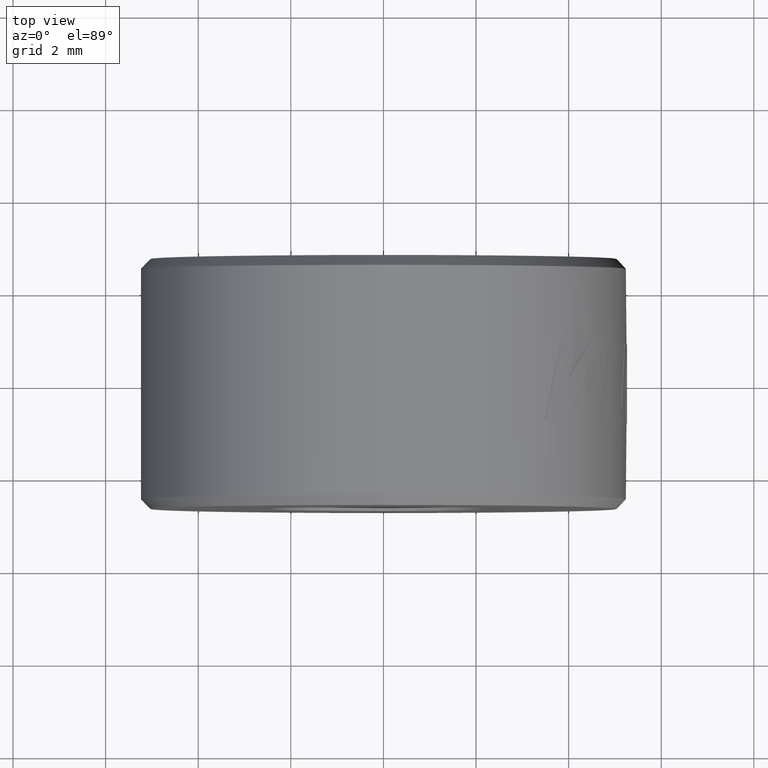
[diagram: clean part render]
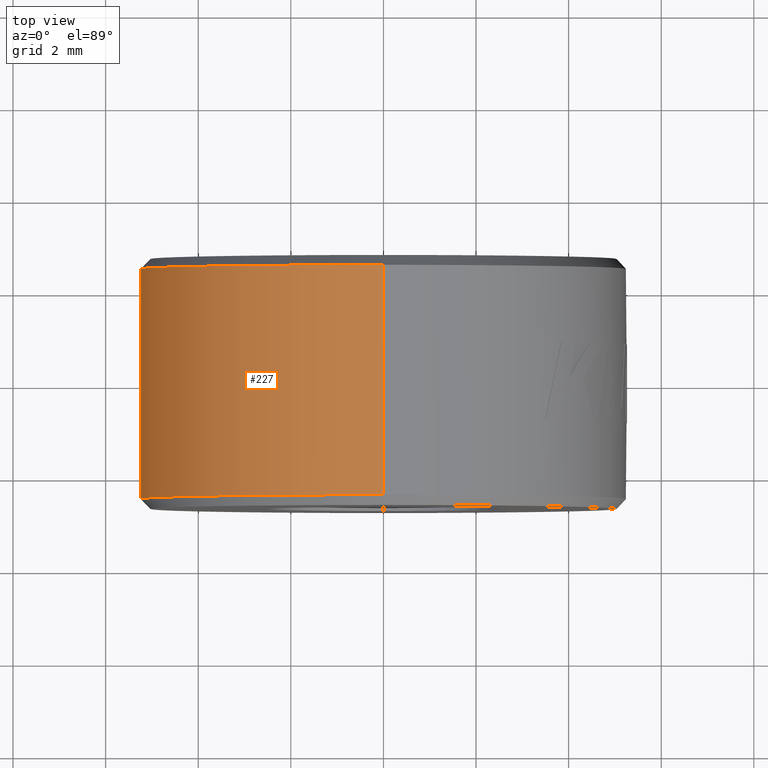
[diagram: same view with one face highlighted and labeled with its STEP entity id]
A machine part, top view. The second image highlights one B-rep face of the part: STEP entity #227.
In plain terms, the highlighted cylindrical surface (partial cylindrical patch) has radius 5.25 mm, axis along (0, 1, 0).
Its self-contained STEP definition (entity closure, byte-faithful):
#40 = AXIS2_PLACEMENT_3D ( 'NONE', #162, #691, #2051 ) ;
#53 = DIRECTION ( 'NONE',  ( 0.000000000000000000, 0.000000000000000000, 1.000000000000000000 ) ) ;
#162 = CARTESIAN_POINT ( 'NONE',  ( 0.000000000000000000, -2.700000000000000178, 0.000000000000000000 ) ) ;
#188 = CARTESIAN_POINT ( 'NONE',  ( 0.000000000000000000, -2.483699999999993135, 0.000000000000000000 ) ) ;
#205 = CARTESIAN_POINT ( 'NONE',  ( 0.000000000000000000, 2.483700000000002017, 0.000000000000000000 ) ) ;
#227 = ADVANCED_FACE ( 'NONE', ( #715 ), #2409, .T. ) ;
#270 = DIRECTION ( 'NONE',  ( 0.000000000000000000, 1.000000000000000000, 0.000000000000000000 ) ) ;
#318 = EDGE_CURVE ( 'NONE', #1712, #1599, #357, .T. ) ;
#336 = DIRECTION ( 'NONE',  ( 0.000000000000000000, 1.000000000000000000, 0.000000000000000000 ) ) ;
#357 = CIRCLE ( 'NONE', #1675, 5.250000000000000000 ) ;
#383 = EDGE_LOOP ( 'NONE', ( #2380, #2088, #1356, #1074 ) ) ;
#406 = VERTEX_POINT ( 'NONE', #465 ) ;
#419 = EDGE_CURVE ( 'NONE', #406, #1712, #511, .T. ) ;
#465 = CARTESIAN_POINT ( 'NONE',  ( 0.000000000000000000, -2.483699999999993135, 5.250000000000000000 ) ) ;
#504 = CARTESIAN_POINT ( 'NONE',  ( 6.429395695523603167E-16, -2.700000000000000178, -5.250000000000000000 ) ) ;
#511 = LINE ( 'NONE', #2174, #2382 ) ;
#590 = VERTEX_POINT ( 'NONE', #2034 ) ;
#691 = DIRECTION ( 'NONE',  ( 0.000000000000000000, 1.000000000000000000, 0.000000000000000000 ) ) ;
#715 = FACE_OUTER_BOUND ( 'NONE', #383, .T. ) ;
#823 = CARTESIAN_POINT ( 'NONE',  ( 6.429395695523603167E-16, 2.483700000000002017, -5.250000000000000000 ) ) ;
#879 = LINE ( 'NONE', #504, #1991 ) ;
#944 = DIRECTION ( 'NONE',  ( 0.000000000000000000, 0.000000000000000000, 1.000000000000000000 ) ) ;
#1028 = EDGE_CURVE ( 'NONE', #590, #406, #1104, .T. ) ;
#1049 = CARTESIAN_POINT ( 'NONE',  ( 0.000000000000000000, 2.483700000000002017, 5.250000000000000000 ) ) ;
#1074 = ORIENTED_EDGE ( 'NONE', *, *, #318, .T. ) ;
#1104 = CIRCLE ( 'NONE', #1179, 5.250000000000000000 ) ;
#1179 = AXIS2_PLACEMENT_3D ( 'NONE', #188, #1526, #53 ) ;
#1230 = EDGE_CURVE ( 'NONE', #590, #1599, #879, .T. ) ;
#1356 = ORIENTED_EDGE ( 'NONE', *, *, #419, .T. ) ;
#1526 = DIRECTION ( 'NONE',  ( -0.000000000000000000, 1.000000000000000000, -0.000000000000000000 ) ) ;
#1599 = VERTEX_POINT ( 'NONE', #823 ) ;
#1675 = AXIS2_PLACEMENT_3D ( 'NONE', #205, #2081, #944 ) ;
#1712 = VERTEX_POINT ( 'NONE', #1049 ) ;
#1991 = VECTOR ( 'NONE', #336, 1000.000000000000000 ) ;
#2034 = CARTESIAN_POINT ( 'NONE',  ( 6.429395695523603167E-16, -2.483699999999993135, -5.250000000000000000 ) ) ;
#2051 = DIRECTION ( 'NONE',  ( 0.000000000000000000, 0.000000000000000000, 1.000000000000000000 ) ) ;
#2081 = DIRECTION ( 'NONE',  ( 0.000000000000000000, -1.000000000000000000, 0.000000000000000000 ) ) ;
#2088 = ORIENTED_EDGE ( 'NONE', *, *, #1028, .T. ) ;
#2174 = CARTESIAN_POINT ( 'NONE',  ( 0.000000000000000000, -2.700000000000000178, 5.250000000000000000 ) ) ;
#2380 = ORIENTED_EDGE ( 'NONE', *, *, #1230, .F. ) ;
#2382 = VECTOR ( 'NONE', #270, 1000.000000000000000 ) ;
#2409 = CYLINDRICAL_SURFACE ( 'NONE', #40, 5.250000000000000000 ) ;